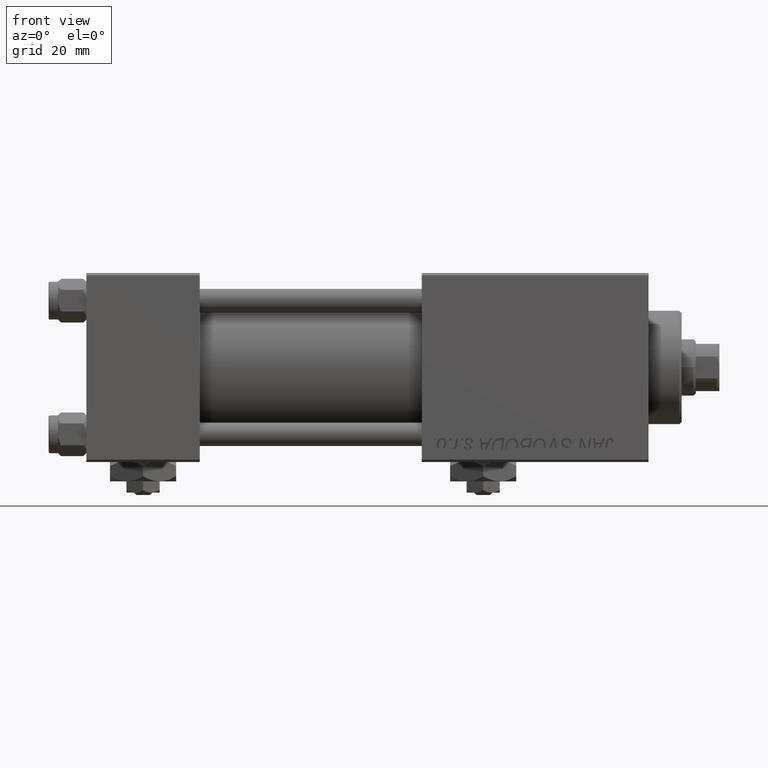
[diagram: clean part render]
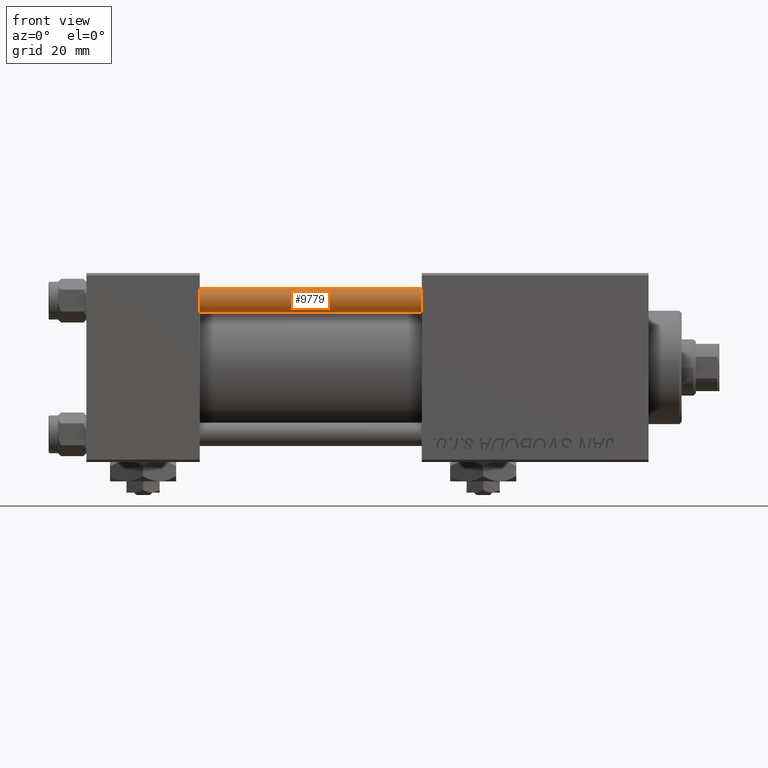
[diagram: same view with one face highlighted and labeled with its STEP entity id]
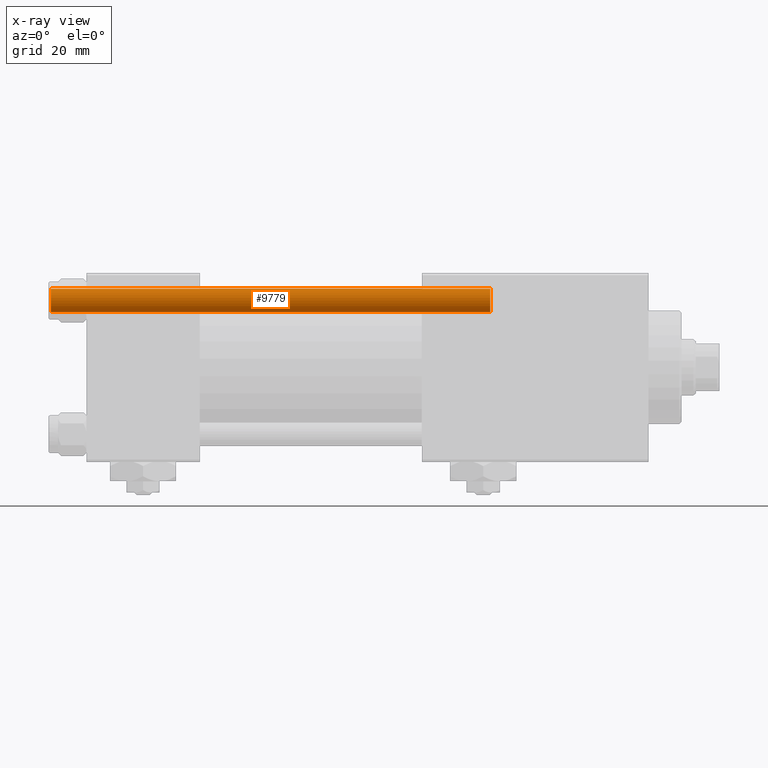
[diagram: x-ray of the same camera — body ghosted, the highlighted face saturated]
A machine part, front view. The second image highlights one B-rep face of the part: STEP entity #9779.
The next image is the same camera in x-ray: the body ghosted, the highlighted face saturated — about 0% of this face is hidden behind the body in this view.
In plain terms, the highlighted cylindrical surface (edge-blend (fillet) strip) has radius 2.5 mm, axis along (1, 0, -0).
Its self-contained STEP definition (entity closure, byte-faithful):
#473 = AXIS2_PLACEMENT_3D ( 'NONE', #39462, #19934, #43428 ) ;
#1680 = AXIS2_PLACEMENT_3D ( 'NONE', #21826, #2052, #46085 ) ;
#2052 = DIRECTION ( 'NONE',  ( -0.000000000000000000, -0.000000000000000000, -1.000000000000000000 ) ) ;
#2340 = ORIENTED_EDGE ( 'NONE', *, *, #52058, .T. ) ;
#4897 = CARTESIAN_POINT ( 'NONE',  ( 0.000000000000000000, 0.000000000000000000, 0.5000000000000004441 ) ) ;
#8604 = DIRECTION ( 'NONE',  ( 1.000000000000000000, 0.000000000000000000, 0.000000000000000000 ) ) ;
#8836 = LINE ( 'NONE', #45742, #23259 ) ;
#9779 = ADVANCED_FACE ( 'NONE', ( #37641 ), #29983, .T. ) ;
#10566 = ORIENTED_EDGE ( 'NONE', *, *, #30823, .F. ) ;
#13175 = CARTESIAN_POINT ( 'NONE',  ( -2.500000000000000000, 0.000000000000000000, 93.50000000000001421 ) ) ;
#13895 = CARTESIAN_POINT ( 'NONE',  ( 2.500000000000000000, 3.061616997868383141E-16, 93.50000000000001421 ) ) ;
#13921 = ORIENTED_EDGE ( 'NONE', *, *, #27011, .T. ) ;
#14563 = CARTESIAN_POINT ( 'NONE',  ( 2.500000000000000000, 3.061616997868383141E-16, 94.00000000000000000 ) ) ;
#19934 = DIRECTION ( 'NONE',  ( 0.000000000000000000, 0.000000000000000000, -1.000000000000000000 ) ) ;
#20974 = DIRECTION ( 'NONE',  ( -0.000000000000000000, -0.000000000000000000, 1.000000000000000000 ) ) ;
#21826 = CARTESIAN_POINT ( 'NONE',  ( 0.000000000000000000, 0.000000000000000000, 94.00000000000000000 ) ) ;
#22471 = DIRECTION ( 'NONE',  ( -0.000000000000000000, -0.000000000000000000, -1.000000000000000000 ) ) ;
#23259 = VECTOR ( 'NONE', #37801, 1000.000000000000000 ) ;
#26966 = VERTEX_POINT ( 'NONE', #13895 ) ;
#27011 = EDGE_CURVE ( 'NONE', #49517, #26966, #49325, .T. ) ;
#29983 = CYLINDRICAL_SURFACE ( 'NONE', #1680, 2.500000000000000000 ) ;
#30027 = VECTOR ( 'NONE', #22471, 1000.000000000000000 ) ;
#30422 = EDGE_CURVE ( 'NONE', #26966, #30432, #34861, .T. ) ;
#30432 = VERTEX_POINT ( 'NONE', #42008 ) ;
#30442 = EDGE_LOOP ( 'NONE', ( #13921, #31338, #2340, #10566 ) ) ;
#30823 = EDGE_CURVE ( 'NONE', #49517, #40152, #8836, .T. ) ;
#31338 = ORIENTED_EDGE ( 'NONE', *, *, #30422, .T. ) ;
#31416 = AXIS2_PLACEMENT_3D ( 'NONE', #4897, #20974, #8604 ) ;
#34861 = LINE ( 'NONE', #14563, #30027 ) ;
#35635 = CIRCLE ( 'NONE', #31416, 2.500000000000000000 ) ;
#37641 = FACE_OUTER_BOUND ( 'NONE', #30442, .T. ) ;
#37801 = DIRECTION ( 'NONE',  ( -0.000000000000000000, -0.000000000000000000, -1.000000000000000000 ) ) ;
#39462 = CARTESIAN_POINT ( 'NONE',  ( 0.000000000000000000, 0.000000000000000000, 93.50000000000001421 ) ) ;
#40152 = VERTEX_POINT ( 'NONE', #50490 ) ;
#42008 = CARTESIAN_POINT ( 'NONE',  ( 2.500000000000000000, 3.061616997868383141E-16, 0.5000000000000004441 ) ) ;
#43428 = DIRECTION ( 'NONE',  ( 1.000000000000000000, 0.000000000000000000, 0.000000000000000000 ) ) ;
#45742 = CARTESIAN_POINT ( 'NONE',  ( -2.500000000000000000, 0.000000000000000000, 94.00000000000000000 ) ) ;
#46085 = DIRECTION ( 'NONE',  ( -1.000000000000000000, 0.000000000000000000, 0.000000000000000000 ) ) ;
#49325 = CIRCLE ( 'NONE', #473, 2.500000000000000000 ) ;
#49517 = VERTEX_POINT ( 'NONE', #13175 ) ;
#50490 = CARTESIAN_POINT ( 'NONE',  ( -2.500000000000000000, 0.000000000000000000, 0.5000000000000004441 ) ) ;
#52058 = EDGE_CURVE ( 'NONE', #30432, #40152, #35635, .T. ) ;